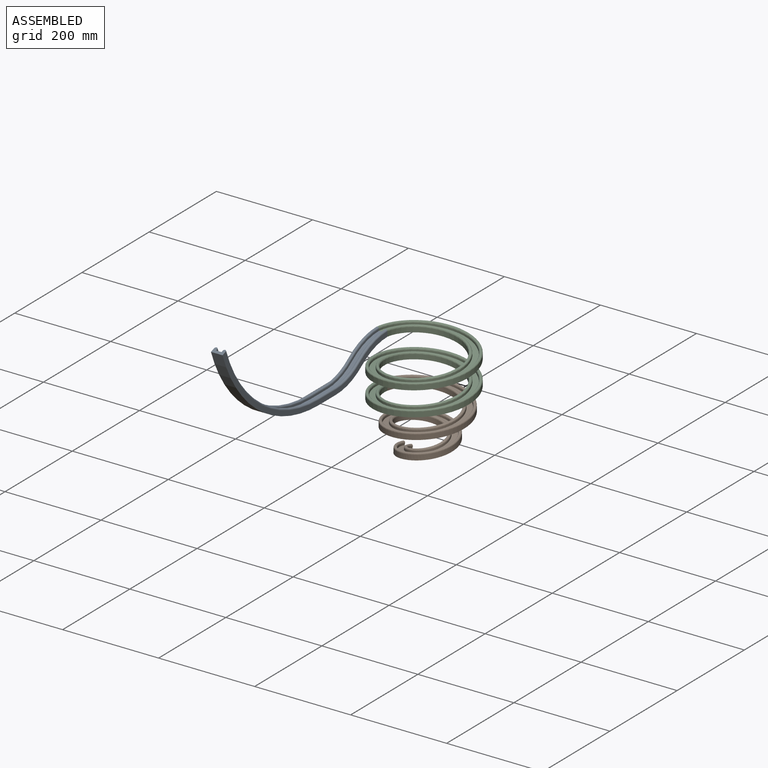
[diagram: assembled view]
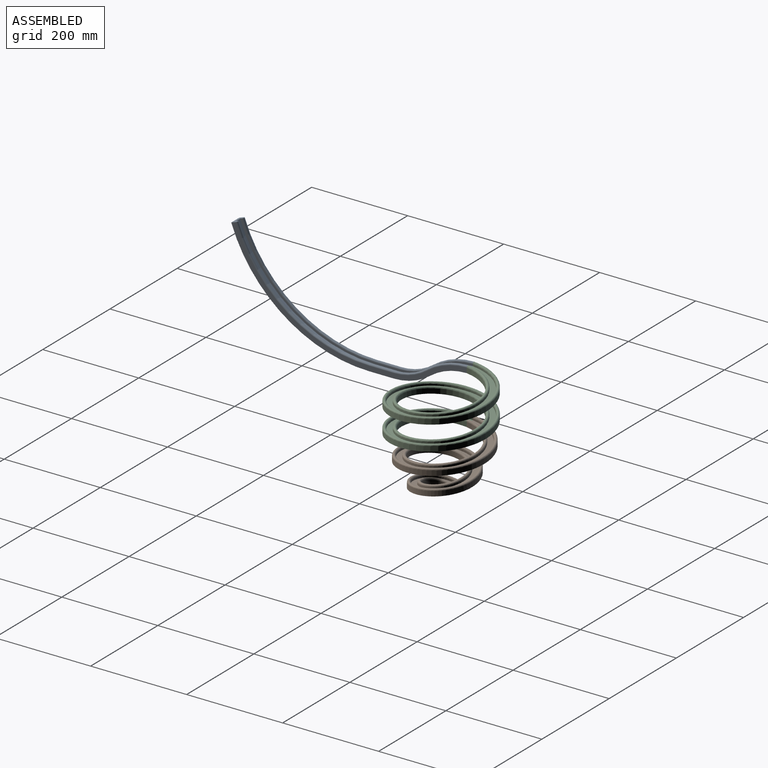
[diagram: assembled view, second angle]
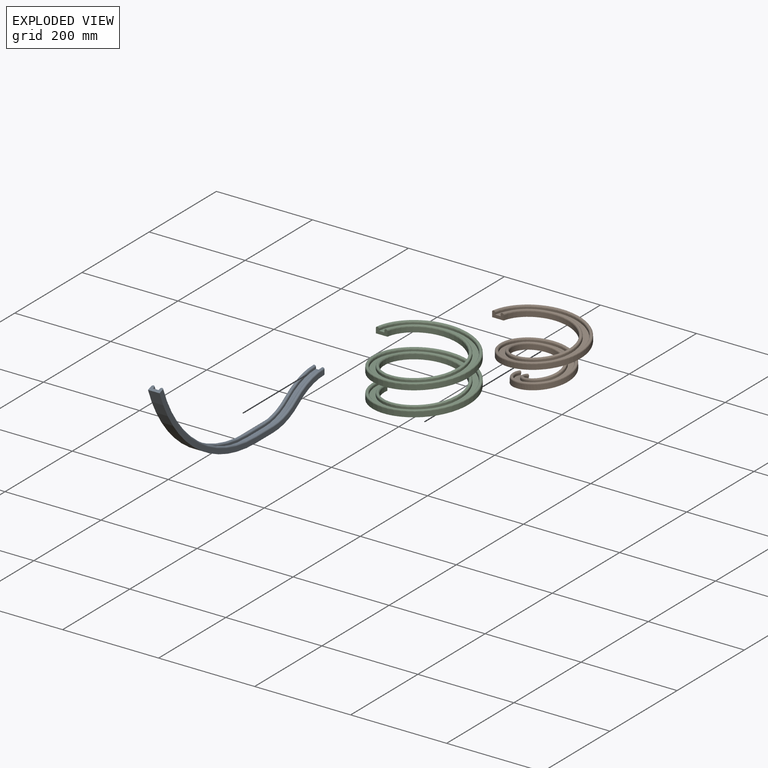
[diagram: exploded view]
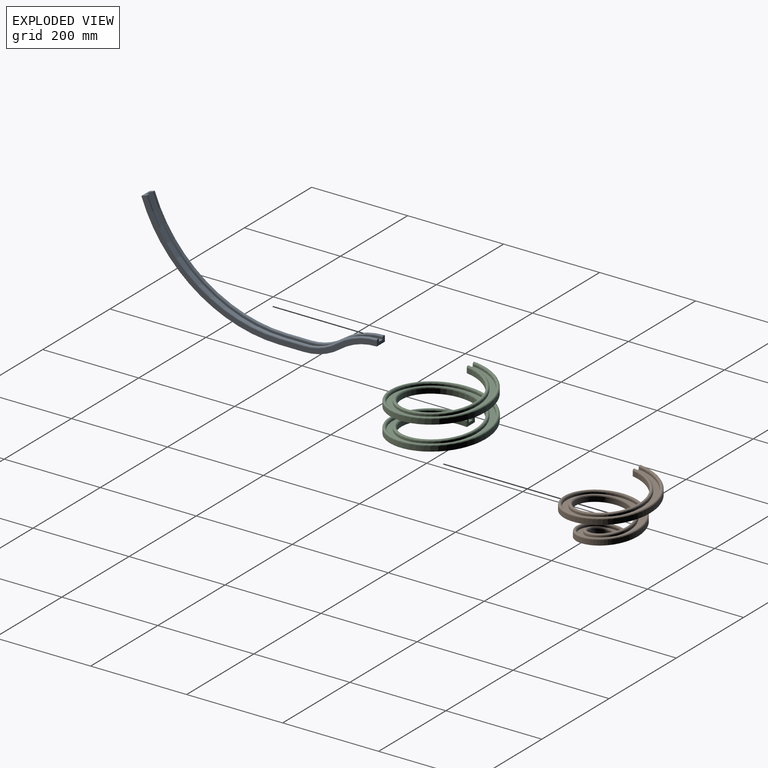
[diagram: exploded view, second angle]
ASSEMBLY  parts=3 mates=2
PART A: 22 faces, bbox 24.1x506.2x224.2 mm
  f0: plane 24.13x13.34mm, normal (0,1,0), area 233.3mm2, adj f2,f3,f4,f5,f6,f7,f8,f9
  f1: plane 24.13x12.57mm, normal (0,-0.33,0.94), area 233.3mm2, adj f3,f5,f7,f9,f18,f19,f20,f21
  f2: cylinder r=133.35mm len=80.01mm, axis (1,0,0), area 980.8mm2, adj f0,f3,f9,f10
  f3: plane 484.58x200.24mm, normal (1,0,0), area 2207.1mm2, adj f0,f1,f2,f4,f10,f11,f14,f15
  f4: torus R=137.16mm, axis (1,0,0), area 893.4mm2, adj f0,f3,f5,f11
  f5: plane 490.57x206.59mm, normal (-1,0,0), area 5925.2mm2, adj f0,f1,f4,f6,f11,f12,f15,f16
  f6: cylinder r=127mm len=76.2mm, axis (1,0,0), area 1972mm2, adj f0,f5,f7,f12
  f7: plane 490.57x206.59mm, normal (1,0,0), area 5925.2mm2, adj f0,f1,f6,f8,f12,f13,f16,f17
  f8: torus R=137.16mm, axis (1,0,0), area 893.4mm2, adj f0,f7,f9,f13
  f9: plane 484.58x200.24mm, normal (-1,0,0), area 2207.1mm2, adj f0,f1,f2,f8,f10,f13,f14,f17
  f10: cylinder r=120.65mm len=72.39mm, axis (-1,0,0), area 887.4mm2, adj f2,f3,f9,f14
  f11: torus R=116.84mm, axis (-1,0,0), area 737mm2, adj f3,f4,f5,f15
  f12: cylinder r=127mm len=76.2mm, axis (-1,0,0), area 1972mm2, adj f5,f6,f7,f16
  f13: torus R=116.84mm, axis (-1,0,0), area 737mm2, adj f7,f8,f9,f17
  f14: plane 50.8x11.43mm, normal (0,0,1), area 580.6mm2, adj f3,f9,f10,f18
  f15: cylinder r=3.17mm len=50.8mm, axis (0,-1,0), area 506.7mm2, adj f3,f5,f11,f19
  f16: plane 50.8x24.13mm, normal (0,0,-1), area 1225.8mm2, adj f5,f7,f12,f20
  f17: cylinder r=3.17mm len=50.8mm, axis (0,-1,0), area 506.7mm2, adj f7,f9,f13,f21
  f18: cylinder r=298.45mm len=281.38mm, axis (-1,0,0), area 4199.2mm2, adj f1,f3,f9,f14
  f19: torus R=294.64mm, axis (-1,0,0), area 3592.9mm2, adj f1,f3,f5,f15
  f20: cylinder r=304.8mm len=287.37mm, axis (-1,0,0), area 9053.5mm2, adj f1,f5,f7,f16
  f21: torus R=294.64mm, axis (-1,0,0), area 3592.9mm2, adj f1,f7,f9,f17
PART B: 10 faces, bbox 188.5x176.4x118.1 mm
  f0: plane 24.13x13.34mm, normal (0,-1,0), area 233.3mm2, adj f2,f3,f4,f5,f6,f7,f8,f9
  f1: plane 24.65x14.07mm, normal (0.11,0.97,-0.2), area 233.3mm2, adj f2,f3,f4,f5,f6,f7,f8,f9
  f2: bspline ~188.05x175.39mm, area 19293.3mm2, adj f0,f1,f3,f9
  f3: bspline ~188.48x176.41mm, area 9657.2mm2, adj f0,f1,f2,f4
  f4: bspline ~188.45x176.36mm, area 9088.3mm2, adj f0,f1,f3,f5
  f5: bspline ~175.72x163.63mm, area 3316.9mm2, adj f0,f1,f4,f6
  f6: bspline ~175.35x162.68mm, area 9139.6mm2, adj f0,f1,f5,f7
  f7: bspline ~152.8x140.67mm, area 2767.7mm2, adj f0,f1,f6,f8
  f8: bspline ~152.8x140.66mm, area 6856.9mm2, adj f0,f1,f7,f9
  f9: bspline ~140.11x127.95mm, area 6564.6mm2, adj f0,f1,f2,f8
PART C: 10 faces, bbox 200.7x200.7x118.1 mm
  f0: plane 24.13x13.34mm, normal (0,-1,0), area 233.3mm2, adj f2,f3,f4,f5,f6,f7,f8,f9
  f1: plane 24.13x13.34mm, normal (0,1,0), area 233.3mm2, adj f2,f3,f4,f5,f6,f7,f8,f9
  f2: bspline ~200.66x200.66mm, area 26882.8mm2, adj f0,f1,f3,f9
  f3: cylinder r=100.33mm len=200.66mm, axis (0,0,-1), area 12809.6mm2, adj f0,f1,f2,f4
  f4: bspline ~200.66x200.66mm, area 12201.4mm2, adj f0,f1,f3,f5
  f5: cylinder r=93.98mm len=187.96mm, axis (0,0,-1), area 4499.6mm2, adj f0,f1,f4,f6
  f6: bspline ~187.96x187.96mm, area 12733.7mm2, adj f0,f1,f5,f7
  f7: cylinder r=82.55mm len=165.1mm, axis (0,0,-1), area 3952.3mm2, adj f0,f1,f6,f8
  f8: bspline ~165.1x165.1mm, area 9977.1mm2, adj f0,f1,f7,f9
  f9: cylinder r=76.2mm len=152.4mm, axis (0,0,-1), area 9728.8mm2, adj f0,f1,f2,f8
PLACE A rot(axis=(0.45,0.27,-0.85),0deg) t=(-160.98,-89.3,88.26)mm
PLACE B rot(axis=(0.45,0.27,-0.85),0deg) t=(-160.98,-89.3,-13.34)mm
PLACE C rot(axis=(0.45,0.27,-0.85),0deg) t=(-160.98,-89.3,88.26)mm
MATE fastened A.f0 <-> C.f0  axis (0,1,0) through (-173.05,-89.3,93.62)mm
MATE fastened C.f1 <-> B.f0  axis (0,1,0) through (-173.05,-89.3,-7.98)mm
